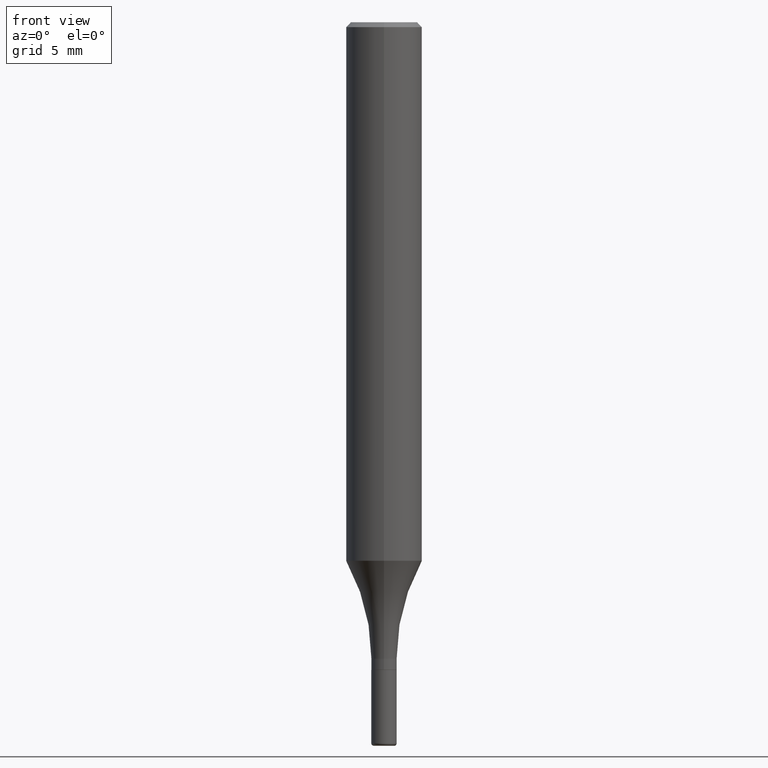
[diagram: clean part render]
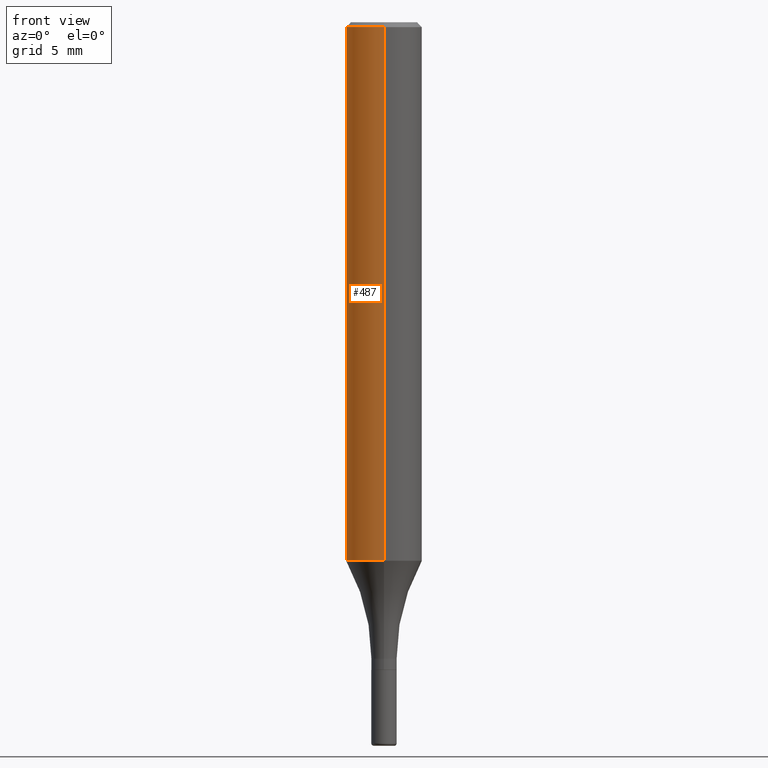
[diagram: same view with one face highlighted and labeled with its STEP entity id]
A machine part, front view. The second image highlights one B-rep face of the part: STEP entity #487.
In plain terms, the highlighted cylindrical surface (partial cylindrical patch) has radius 2.9997 mm, axis along (-0, 0, 1).
Its self-contained STEP definition (entity closure, byte-faithful):
#7 = FACE_OUTER_BOUND ( 'NONE', #47, .T. ) ;
#12 = DIRECTION ( 'NONE',  ( -2.445139223324277623E-29, 3.491953320258587093E-15, 1.000000000000000000 ) ) ;
#17 = CARTESIAN_POINT ( 'NONE',  ( 3.667708834986338837E-31, -5.237929980387770643E-17, -0.01499999999999968373 ) ) ;
#18 = CARTESIAN_POINT ( 'NONE',  ( -8.246878922347480654E-16, -0.1181000000000000105, 4.123996871225391415E-16 ) ) ;
#29 = AXIS2_PLACEMENT_3D ( 'NONE', #362, #12, #369 ) ;
#39 = EDGE_CURVE ( 'NONE', #48, #338, #242, .T. ) ;
#47 = EDGE_LOOP ( 'NONE', ( #400, #65, #130, #425 ) ) ;
#48 = VERTEX_POINT ( 'NONE', #359 ) ;
#65 = ORIENTED_EDGE ( 'NONE', *, *, #320, .T. ) ;
#76 = AXIS2_PLACEMENT_3D ( 'NONE', #17, #107, #405 ) ;
#96 = CARTESIAN_POINT ( 'NONE',  ( 4.084351511197792915E-29, -5.832945905321489413E-15, -1.670396299824977726 ) ) ;
#101 = DIRECTION ( 'NONE',  ( -6.982962677686265922E-15, -1.000000000000000000, 4.626330217890367758E-15 ) ) ;
#102 = VERTEX_POINT ( 'NONE', #508 ) ;
#107 = DIRECTION ( 'NONE',  ( -2.445139223324277623E-29, 3.491953320258587093E-15, 1.000000000000000000 ) ) ;
#122 = DIRECTION ( 'NONE',  ( -2.445139223324277343E-29, 3.491953320258587093E-15, 1.000000000000000000 ) ) ;
#130 = ORIENTED_EDGE ( 'NONE', *, *, #152, .T. ) ;
#152 = EDGE_CURVE ( 'NONE', #102, #234, #327, .T. ) ;
#158 = CIRCLE ( 'NONE', #163, 0.1181000000000000383 ) ;
#163 = AXIS2_PLACEMENT_3D ( 'NONE', #96, #279, #101 ) ;
#234 = VERTEX_POINT ( 'NONE', #277 ) ;
#242 = LINE ( 'NONE', #494, #518 ) ;
#255 = CYLINDRICAL_SURFACE ( 'NONE', #29, 0.1181000000000000105 ) ;
#277 = CARTESIAN_POINT ( 'NONE',  ( -8.102248135368174406E-16, -0.1181000000000000522, -0.01499999999999927260 ) ) ;
#279 = DIRECTION ( 'NONE',  ( -2.445139223324277623E-29, 3.491953320258587093E-15, 1.000000000000000000 ) ) ;
#320 = EDGE_CURVE ( 'NONE', #48, #102, #158, .T. ) ;
#327 = LINE ( 'NONE', #18, #464 ) ;
#338 = VERTEX_POINT ( 'NONE', #365 ) ;
#359 = CARTESIAN_POINT ( 'NONE',  ( 8.391509709327193165E-16, 0.1180999999999942096, -1.670396299824978170 ) ) ;
#362 = CARTESIAN_POINT ( 'NONE',  ( 0.000000000000000000, 0.000000000000000000, 0.000000000000000000 ) ) ;
#365 = CARTESIAN_POINT ( 'NONE',  ( 8.246878922347483612E-16, 0.1180999999999999411, -0.01500000000000009659 ) ) ;
#369 = DIRECTION ( 'NONE',  ( -6.982962677686265922E-15, -1.000000000000000000, 3.491953320258586699E-15 ) ) ;
#400 = ORIENTED_EDGE ( 'NONE', *, *, #39, .F. ) ;
#405 = DIRECTION ( 'NONE',  ( -6.982962677686265922E-15, -1.000000000000000000, 3.487819265831411744E-15 ) ) ;
#425 = ORIENTED_EDGE ( 'NONE', *, *, #482, .F. ) ;
#440 = DIRECTION ( 'NONE',  ( -2.445139223324277343E-29, 3.491953320258587093E-15, 1.000000000000000000 ) ) ;
#443 = CIRCLE ( 'NONE', #76, 0.1180999999999999966 ) ;
#464 = VECTOR ( 'NONE', #122, 39.37007874015748143 ) ;
#482 = EDGE_CURVE ( 'NONE', #338, #234, #443, .T. ) ;
#487 = ADVANCED_FACE ( 'NONE', ( #7 ), #255, .T. ) ;
#494 = CARTESIAN_POINT ( 'NONE',  ( 8.391509709326782957E-16, 0.1181000000000000105, -4.123996871225391415E-16 ) ) ;
#508 = CARTESIAN_POINT ( 'NONE',  ( -8.246878922347075377E-16, -0.1181000000000058253, -1.670396299824977282 ) ) ;
#518 = VECTOR ( 'NONE', #440, 39.37007874015748143 ) ;